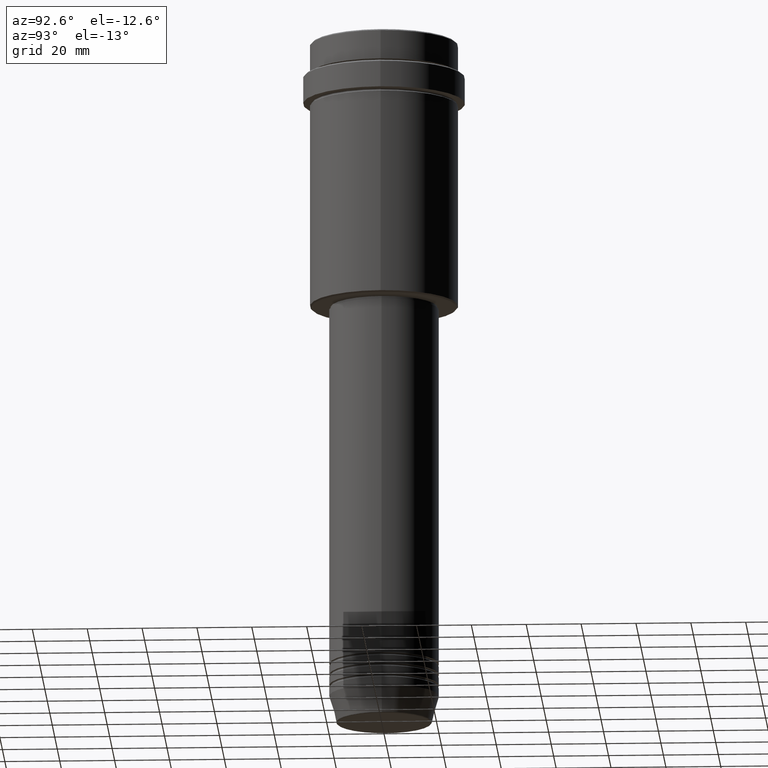
[diagram: clean part render]
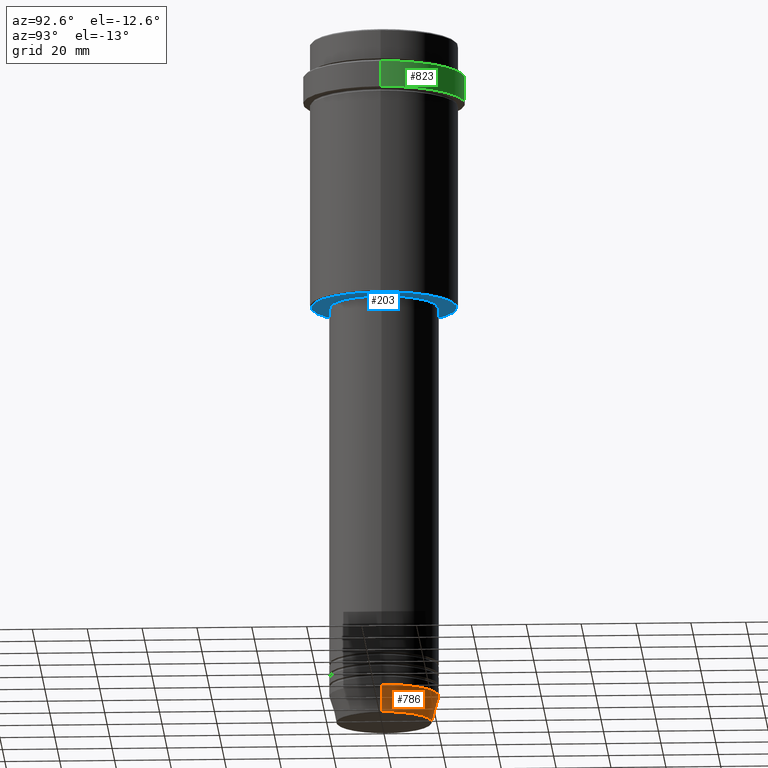
[diagram: same view with three faces highlighted in distinct colors, each labeled with its STEP entity id]
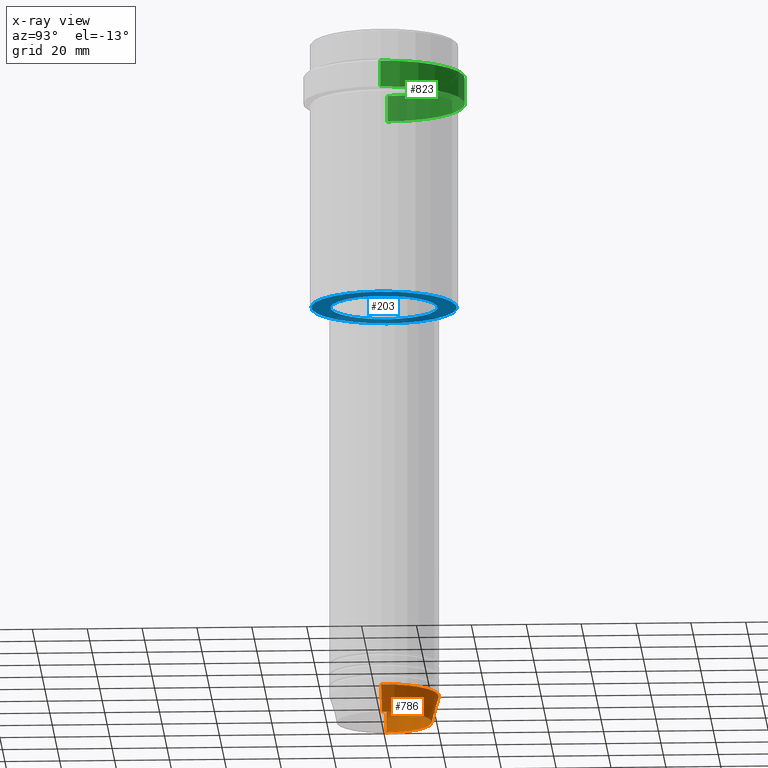
[diagram: x-ray of the same camera — body ghosted, the three highlighted faces saturated]
A machine part, auxiliary view with three faces highlighted in distinct colors.
The next image is the same camera in x-ray (body ghosted, the three faces saturated) — at least one of them is partly hidden behind the body in this view.
Their STEP definitions:

[orange] entity #786 — the highlighted conical surface has half-angle 15 deg.
#8 = CARTESIAN_POINT ( 'NONE',  ( -20.00000000000000000, 2.449293598294706513E-15, -243.0000000000000000 ) ) ;
#57 = CARTESIAN_POINT ( 'NONE',  ( -17.41980749484382329, 2.291302373663531915E-15, -252.6294095225512422 ) ) ;
#182 = VECTOR ( 'NONE', #224, 1000.000000000000114 ) ;
#196 = ORIENTED_EDGE ( 'NONE', *, *, #1051, .F. ) ;
#224 = DIRECTION ( 'NONE',  ( -0.2588190451025211836, 3.169619151431770488E-17, 0.9659258262890680902 ) ) ;
#241 = DIRECTION ( 'NONE',  ( -0.000000000000000000, -0.000000000000000000, 1.000000000000000000 ) ) ;
#286 = DIRECTION ( 'NONE',  ( 1.000000000000000000, 0.000000000000000000, 0.000000000000000000 ) ) ;
#287 = FACE_OUTER_BOUND ( 'NONE', #973, .T. ) ;
#324 = DIRECTION ( 'NONE',  ( 0.2588190451025211836, 0.000000000000000000, 0.9659258262890680902 ) ) ;
#360 = DIRECTION ( 'NONE',  ( -0.000000000000000000, -0.000000000000000000, 1.000000000000000000 ) ) ;
#389 = DIRECTION ( 'NONE',  ( 1.000000000000000000, 0.000000000000000000, 0.000000000000000000 ) ) ;
#420 = CARTESIAN_POINT ( 'NONE',  ( 17.41980749484382329, 0.000000000000000000, -252.6294095225512422 ) ) ;
#474 = ORIENTED_EDGE ( 'NONE', *, *, #999, .T. ) ;
#484 = CIRCLE ( 'NONE', #1292, 17.41980749484382329 ) ;
#500 = CARTESIAN_POINT ( 'NONE',  ( 0.000000000000000000, 0.000000000000000000, -243.0000000000000000 ) ) ;
#530 = AXIS2_PLACEMENT_3D ( 'NONE', #1134, #360, #389 ) ;
#568 = CARTESIAN_POINT ( 'NONE',  ( 20.00000000000000000, 0.000000000000000000, -243.0000000000000000 ) ) ;
#609 = VERTEX_POINT ( 'NONE', #57 ) ;
#678 = LINE ( 'NONE', #8, #182 ) ;
#714 = VECTOR ( 'NONE', #324, 1000.000000000000114 ) ;
#722 = CONICAL_SURFACE ( 'NONE', #1120, 20.00000000000000000, 0.2617993877991499074 ) ;
#730 = DIRECTION ( 'NONE',  ( 1.000000000000000000, 0.000000000000000000, 0.000000000000000000 ) ) ;
#751 = CARTESIAN_POINT ( 'NONE',  ( -20.00000000000000000, 2.449293598294706513E-15, -243.0000000000000000 ) ) ;
#786 = ADVANCED_FACE ( 'NONE', ( #287 ), #722, .T. ) ;
#874 = CARTESIAN_POINT ( 'NONE',  ( 20.00000000000000000, 0.000000000000000000, -243.0000000000000000 ) ) ;
#973 = EDGE_LOOP ( 'NONE', ( #1263, #474, #196, #1233 ) ) ;
#999 = EDGE_CURVE ( 'NONE', #609, #1266, #678, .T. ) ;
#1011 = EDGE_CURVE ( 'NONE', #1297, #1223, #1330, .T. ) ;
#1051 = EDGE_CURVE ( 'NONE', #1223, #1266, #1137, .T. ) ;
#1084 = EDGE_CURVE ( 'NONE', #1297, #609, #484, .T. ) ;
#1120 = AXIS2_PLACEMENT_3D ( 'NONE', #500, #1385, #730 ) ;
#1134 = CARTESIAN_POINT ( 'NONE',  ( 0.000000000000000000, 0.000000000000000000, -243.0000000000000000 ) ) ;
#1137 = CIRCLE ( 'NONE', #530, 20.00000000000000000 ) ;
#1223 = VERTEX_POINT ( 'NONE', #874 ) ;
#1233 = ORIENTED_EDGE ( 'NONE', *, *, #1011, .F. ) ;
#1263 = ORIENTED_EDGE ( 'NONE', *, *, #1084, .T. ) ;
#1266 = VERTEX_POINT ( 'NONE', #751 ) ;
#1268 = CARTESIAN_POINT ( 'NONE',  ( 0.000000000000000000, 0.000000000000000000, -252.6294095225512422 ) ) ;
#1292 = AXIS2_PLACEMENT_3D ( 'NONE', #1268, #241, #286 ) ;
#1297 = VERTEX_POINT ( 'NONE', #420 ) ;
#1330 = LINE ( 'NONE', #568, #714 ) ;
#1385 = DIRECTION ( 'NONE',  ( -0.000000000000000000, -0.000000000000000000, 1.000000000000000000 ) ) ;

[blue] entity #203 — the highlighted planar face has unit normal (0, 0, -1).
#109 = PLANE ( 'NONE',  #281 ) ;
#118 = EDGE_CURVE ( 'NONE', #267, #1167, #254, .T. ) ;
#130 = DIRECTION ( 'NONE',  ( 0.000000000000000000, 0.000000000000000000, -1.000000000000000000 ) ) ;
#146 = CIRCLE ( 'NONE', #1050, 19.49999999999999289 ) ;
#147 = ORIENTED_EDGE ( 'NONE', *, *, #258, .T. ) ;
#160 = DIRECTION ( 'NONE',  ( -1.000000000000000000, 0.000000000000000000, 0.000000000000000000 ) ) ;
#203 = ADVANCED_FACE ( 'NONE', ( #639, #1328 ), #109, .T. ) ;
#233 = CARTESIAN_POINT ( 'NONE',  ( -26.50000000000004974, 3.275930187719173496E-15, -98.00000000000000000 ) ) ;
#254 = CIRCLE ( 'NONE', #1046, 19.49999999999999289 ) ;
#258 = EDGE_CURVE ( 'NONE', #928, #970, #1006, .T. ) ;
#265 = DIRECTION ( 'NONE',  ( 1.000000000000000000, 0.000000000000000000, 0.000000000000000000 ) ) ;
#267 = VERTEX_POINT ( 'NONE', #1164 ) ;
#269 = CARTESIAN_POINT ( 'NONE',  ( 0.000000000000000000, 0.000000000000000000, -98.00000000000000000 ) ) ;
#281 = AXIS2_PLACEMENT_3D ( 'NONE', #1322, #873, #340 ) ;
#292 = DIRECTION ( 'NONE',  ( 0.000000000000000000, 0.000000000000000000, -1.000000000000000000 ) ) ;
#340 = DIRECTION ( 'NONE',  ( -1.000000000000000000, 0.000000000000000000, -0.000000000000000000 ) ) ;
#365 = DIRECTION ( 'NONE',  ( -0.000000000000000000, -0.000000000000000000, 1.000000000000000000 ) ) ;
#498 = CARTESIAN_POINT ( 'NONE',  ( 0.000000000000000000, 0.000000000000000000, -98.00000000000000000 ) ) ;
#538 = EDGE_LOOP ( 'NONE', ( #632, #1348 ) ) ;
#590 = CARTESIAN_POINT ( 'NONE',  ( 0.000000000000000000, 0.000000000000000000, -98.00000000000000000 ) ) ;
#632 = ORIENTED_EDGE ( 'NONE', *, *, #738, .T. ) ;
#639 = FACE_OUTER_BOUND ( 'NONE', #708, .T. ) ;
#686 = DIRECTION ( 'NONE',  ( -1.000000000000000000, 0.000000000000000000, 0.000000000000000000 ) ) ;
#708 = EDGE_LOOP ( 'NONE', ( #1081, #147 ) ) ;
#738 = EDGE_CURVE ( 'NONE', #1167, #267, #146, .T. ) ;
#835 = AXIS2_PLACEMENT_3D ( 'NONE', #498, #292, #160 ) ;
#842 = CARTESIAN_POINT ( 'NONE',  ( 19.49999999999999289, 0.000000000000000000, -98.00000000000000000 ) ) ;
#873 = DIRECTION ( 'NONE',  ( 0.000000000000000000, 0.000000000000000000, -1.000000000000000000 ) ) ;
#927 = DIRECTION ( 'NONE',  ( -0.000000000000000000, -0.000000000000000000, 1.000000000000000000 ) ) ;
#928 = VERTEX_POINT ( 'NONE', #233 ) ;
#965 = DIRECTION ( 'NONE',  ( 1.000000000000000000, 0.000000000000000000, 0.000000000000000000 ) ) ;
#970 = VERTEX_POINT ( 'NONE', #985 ) ;
#985 = CARTESIAN_POINT ( 'NONE',  ( 26.50000000000004974, 0.000000000000000000, -98.00000000000000000 ) ) ;
#1006 = CIRCLE ( 'NONE', #835, 26.50000000000004974 ) ;
#1046 = AXIS2_PLACEMENT_3D ( 'NONE', #590, #927, #965 ) ;
#1050 = AXIS2_PLACEMENT_3D ( 'NONE', #269, #365, #265 ) ;
#1081 = ORIENTED_EDGE ( 'NONE', *, *, #1368, .T. ) ;
#1164 = CARTESIAN_POINT ( 'NONE',  ( -19.49999999999999289, 2.388061258337338150E-15, -98.00000000000000000 ) ) ;
#1167 = VERTEX_POINT ( 'NONE', #842 ) ;
#1249 = AXIS2_PLACEMENT_3D ( 'NONE', #1329, #130, #686 ) ;
#1322 = CARTESIAN_POINT ( 'NONE',  ( 0.000000000000000000, 27.00000000000000355, -98.00000000000000000 ) ) ;
#1328 = FACE_BOUND ( 'NONE', #538, .T. ) ;
#1329 = CARTESIAN_POINT ( 'NONE',  ( 0.000000000000000000, 0.000000000000000000, -98.00000000000000000 ) ) ;
#1348 = ORIENTED_EDGE ( 'NONE', *, *, #118, .T. ) ;
#1362 = CIRCLE ( 'NONE', #1249, 26.50000000000004974 ) ;
#1368 = EDGE_CURVE ( 'NONE', #970, #928, #1362, .T. ) ;

[green] entity #823 — the highlighted cylindrical surface (partial cylindrical patch) has radius 29.5 mm, axis along (-0, -0, 1).
#1 = LINE ( 'NONE', #1125, #1316 ) ;
#162 = DIRECTION ( 'NONE',  ( -0.000000000000000000, -0.000000000000000000, 1.000000000000000000 ) ) ;
#188 = CYLINDRICAL_SURFACE ( 'NONE', #1160, 29.50000000000000000 ) ;
#205 = CARTESIAN_POINT ( 'NONE',  ( -29.50000000000000000, 3.612708057484691604E-15, -12.50000000000003197 ) ) ;
#257 = DIRECTION ( 'NONE',  ( 1.000000000000000000, 0.000000000000000000, 0.000000000000000000 ) ) ;
#382 = VERTEX_POINT ( 'NONE', #1066 ) ;
#395 = LINE ( 'NONE', #1275, #397 ) ;
#397 = VECTOR ( 'NONE', #727, 1000.000000000000000 ) ;
#421 = FACE_OUTER_BOUND ( 'NONE', #1304, .T. ) ;
#446 = DIRECTION ( 'NONE',  ( -0.000000000000000000, -0.000000000000000000, 1.000000000000000000 ) ) ;
#472 = DIRECTION ( 'NONE',  ( 0.000000000000000000, 0.000000000000000000, -1.000000000000000000 ) ) ;
#477 = VERTEX_POINT ( 'NONE', #205 ) ;
#494 = CARTESIAN_POINT ( 'NONE',  ( 0.000000000000000000, 0.000000000000000000, -12.50000000000003197 ) ) ;
#513 = EDGE_CURVE ( 'NONE', #382, #477, #1, .T. ) ;
#574 = CARTESIAN_POINT ( 'NONE',  ( 29.49999999999999645, 0.000000000000000000, -22.00000000000000711 ) ) ;
#592 = ORIENTED_EDGE ( 'NONE', *, *, #1166, .F. ) ;
#599 = EDGE_CURVE ( 'NONE', #1056, #382, #650, .T. ) ;
#624 = AXIS2_PLACEMENT_3D ( 'NONE', #494, #472, #257 ) ;
#636 = CARTESIAN_POINT ( 'NONE',  ( 0.000000000000000000, 0.000000000000000000, 0.000000000000000000 ) ) ;
#641 = EDGE_CURVE ( 'NONE', #477, #909, #937, .T. ) ;
#650 = CIRCLE ( 'NONE', #838, 29.49999999999999645 ) ;
#727 = DIRECTION ( 'NONE',  ( -0.000000000000000000, -0.000000000000000000, 1.000000000000000000 ) ) ;
#823 = ADVANCED_FACE ( 'NONE', ( #421 ), #188, .T. ) ;
#838 = AXIS2_PLACEMENT_3D ( 'NONE', #938, #162, #1024 ) ;
#843 = DIRECTION ( 'NONE',  ( 1.000000000000000000, 0.000000000000000000, 0.000000000000000000 ) ) ;
#870 = ORIENTED_EDGE ( 'NONE', *, *, #599, .T. ) ;
#909 = VERTEX_POINT ( 'NONE', #1201 ) ;
#937 = CIRCLE ( 'NONE', #624, 29.50000000000000000 ) ;
#938 = CARTESIAN_POINT ( 'NONE',  ( 0.000000000000000000, 0.000000000000000000, -22.00000000000000711 ) ) ;
#948 = DIRECTION ( 'NONE',  ( -0.000000000000000000, -0.000000000000000000, 1.000000000000000000 ) ) ;
#959 = ORIENTED_EDGE ( 'NONE', *, *, #641, .T. ) ;
#1024 = DIRECTION ( 'NONE',  ( 1.000000000000000000, 0.000000000000000000, 0.000000000000000000 ) ) ;
#1053 = ORIENTED_EDGE ( 'NONE', *, *, #513, .T. ) ;
#1056 = VERTEX_POINT ( 'NONE', #574 ) ;
#1066 = CARTESIAN_POINT ( 'NONE',  ( -29.49999999999999645, 3.612708057484690815E-15, -22.00000000000000711 ) ) ;
#1125 = CARTESIAN_POINT ( 'NONE',  ( -29.50000000000000000, 3.612708057484691604E-15, 0.000000000000000000 ) ) ;
#1160 = AXIS2_PLACEMENT_3D ( 'NONE', #636, #948, #843 ) ;
#1166 = EDGE_CURVE ( 'NONE', #1056, #909, #395, .T. ) ;
#1201 = CARTESIAN_POINT ( 'NONE',  ( 29.50000000000000000, 0.000000000000000000, -12.50000000000003197 ) ) ;
#1275 = CARTESIAN_POINT ( 'NONE',  ( 29.50000000000000000, 0.000000000000000000, 0.000000000000000000 ) ) ;
#1304 = EDGE_LOOP ( 'NONE', ( #870, #1053, #959, #592 ) ) ;
#1316 = VECTOR ( 'NONE', #446, 1000.000000000000000 ) ;